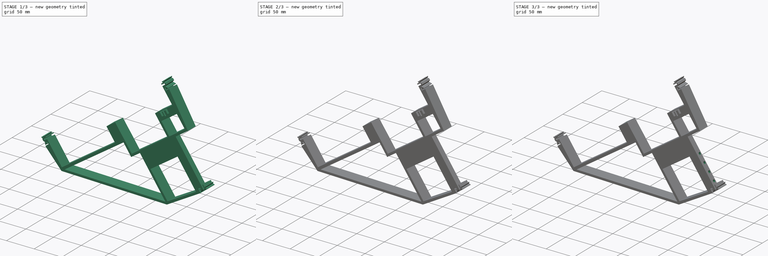
[diagram: build sequence overview — one tinted view per stage of 3, left to right]
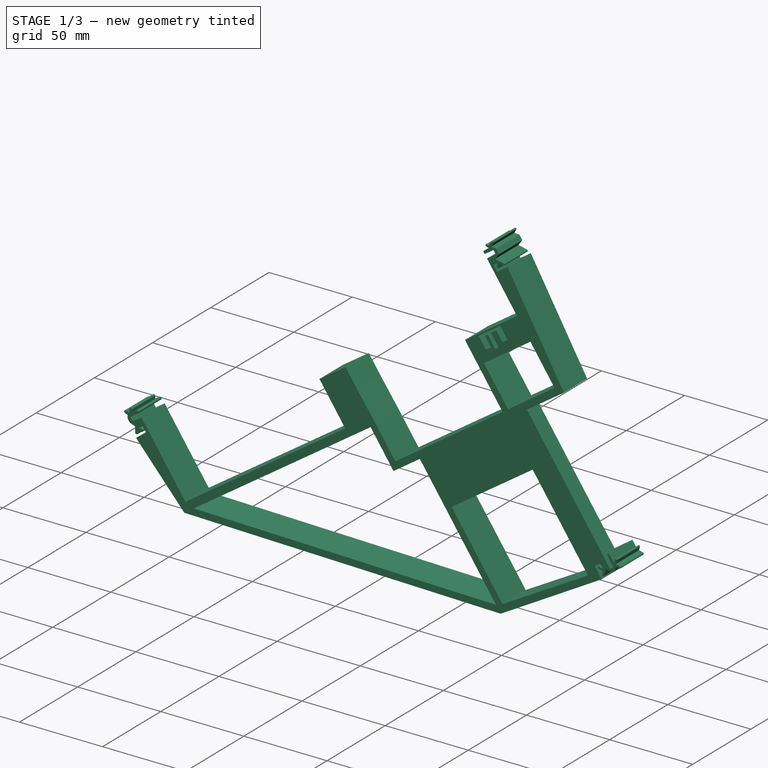
[diagram: stage 1 of 3 — iso view after this stage's code; geometry added in this stage tinted green]
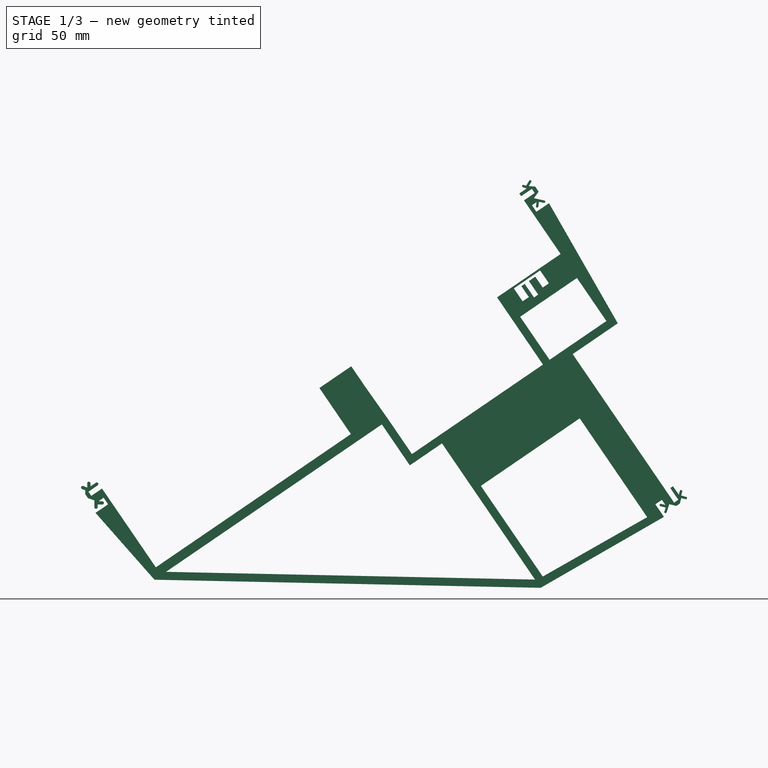
[diagram: stage 1 of 3 — front view after this stage's code; geometry added in this stage tinted green]
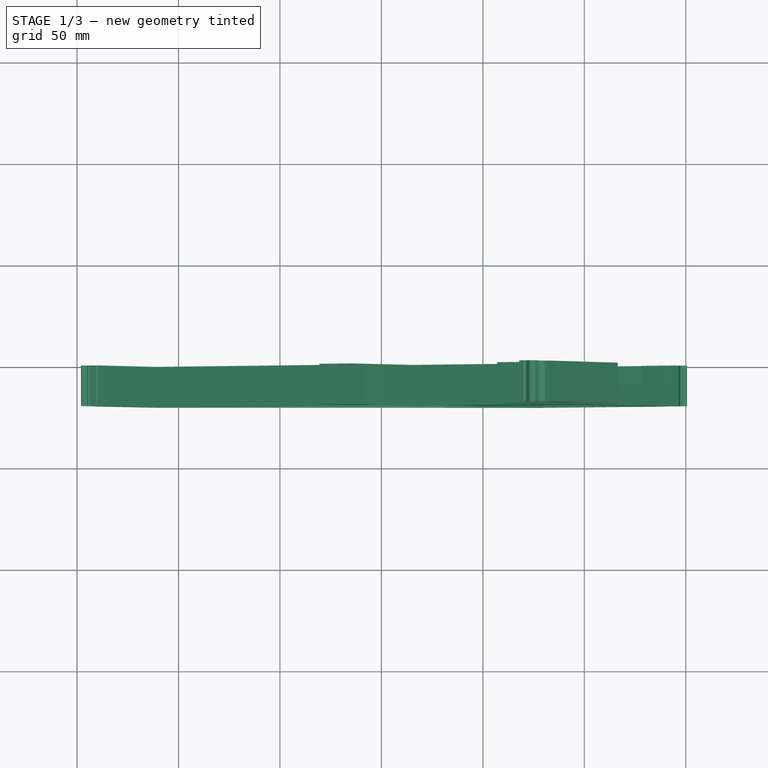
[diagram: stage 1 of 3 — top view after this stage's code; geometry added in this stage tinted green]
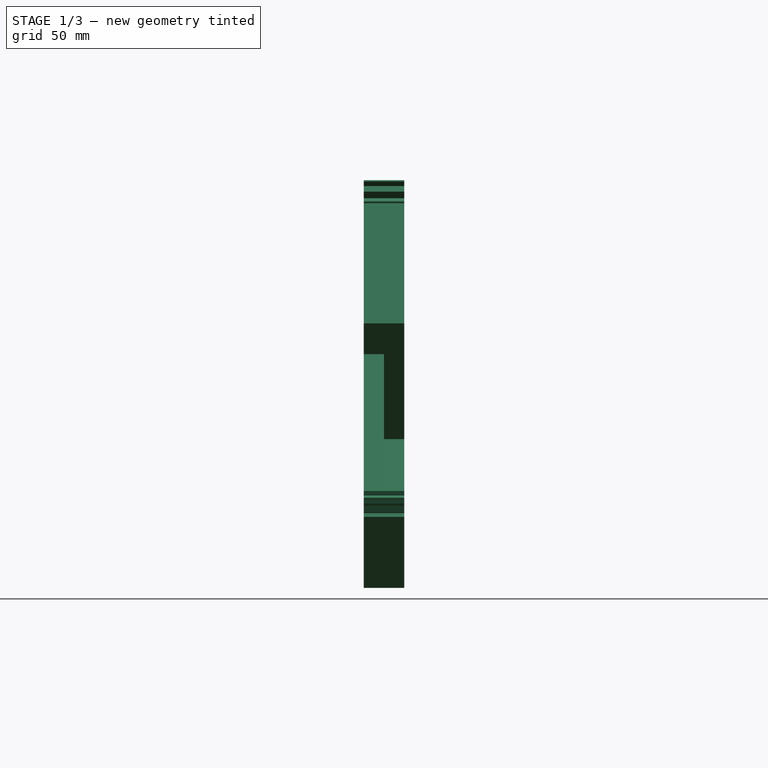
[diagram: stage 1 of 3 — right view after this stage's code; geometry added in this stage tinted green]
FCSTD DOCUMENT  (FreeCAD 0.21R33668 +7 (Git))
Label: rib-rme-middle
License: All rights reserved
LicenseURL: http://en.wikipedia.org/wiki/All_rights_reserved
objects: Sketcher::SketchObject×5, PartDesign::Pocket×4, PartDesign::Plane×3, PartDesign::Pad×1, PartDesign::Body×1
note: 19 computed .brp shape members not serialized (recipe doc carries the construction recipe); baked Part::Feature solids carry a one-line shape summary decoded from their .brp

FEATURE [Sketcher::SketchObject] Sketch
  FullyConstrained = false
  MapMode = 5
  Placement = pos=(0,0,0) rot=(1,0,0;1.5708rad)
  Support = -> [XZ_Plane]
  sketch-geometry (224):
    g0: LineSegment StartX=7.04157 StartY=40.129 StartZ=0 EndX=113.155 EndY=112.6 EndZ=0
    g1: LineSegment StartX=113.155 StartY=112.6 StartZ=0 EndX=111.745 EndY=114.665 EndZ=0
    g2: LineSegment StartX=111.745 StartY=114.665 StartZ=0 EndX=5.63162 EndY=42.1934 EndZ=0
    g3: LineSegment StartX=5.63162 StartY=42.1934 StartZ=0 EndX=7.04157 EndY=40.129 EndZ=0
    g4: LineSegment StartX=12.8221 StartY=44.0768 StartZ=0 EndX=38.7652 EndY=6.09055 EndZ=0
    g5: LineSegment StartX=38.7652 StartY=6.09055 StartZ=0 EndX=133.318 EndY=70.6662 EndZ=0
    g6: LineSegment StartX=133.318 StartY=70.6662 StartZ=0 EndX=107.375 EndY=108.653 EndZ=0
    g7: LineSegment StartX=118.021 StartY=118.951 StartZ=0 EndX=224.135 EndY=191.422 EndZ=0
    g8: LineSegment StartX=224.135 StartY=191.422 StartZ=0 EndX=225.545 EndY=189.358 EndZ=0
    g9: LineSegment StartX=225.545 StartY=189.358 StartZ=0 EndX=119.431 EndY=116.887 EndZ=0
    g10: LineSegment StartX=119.431 StartY=116.887 StartZ=0 EndX=118.021 EndY=118.951 EndZ=0
    g11: LineSegment StartX=125.212 StartY=120.834 StartZ=0 EndX=142.695 EndY=95.235 EndZ=0
    g12: LineSegment StartX=142.695 StartY=95.235 StartZ=0 EndX=237.248 EndY=159.811 EndZ=0
    g13: LineSegment StartX=237.248 StartY=159.811 StartZ=0 EndX=219.765 EndY=185.41 EndZ=0
    g14: LineSegment StartX=223.83 StartY=144.35 StartZ=0 EndX=296.302 EndY=38.236 EndZ=0
    g15: LineSegment StartX=296.302 StartY=38.236 StartZ=0 EndX=294.237 EndY=36.826 EndZ=0
    g16: LineSegment StartX=294.237 StartY=36.826 StartZ=0 EndX=221.766 EndY=142.94 EndZ=0
    g17: LineSegment StartX=221.766 StartY=142.94 StartZ=0 EndX=223.83 EndY=144.35 EndZ=0
    g18: LineSegment StartX=225.714 StartY=137.159 StartZ=0 EndX=166.257 EndY=96.5528 EndZ=0
    g19: LineSegment StartX=166.257 StartY=96.5528 StartZ=0 EndX=230.832 EndY=2 EndZ=0
    g20: LineSegment StartX=230.832 StartY=2 StartZ=0 EndX=290.289 EndY=42.6065 EndZ=0
    g21: LineSegment StartX=120.698 StartY=125.139 StartZ=0 EndX=105.008 EndY=114.423 EndZ=0
    g22: LineSegment StartX=105.008 StartY=114.423 StartZ=0 EndX=105.91 EndY=113.102 EndZ=0
    g23: LineSegment StartX=105.91 StartY=113.102 StartZ=0 EndX=113.095 EndY=118.008 EndZ=0
    g24: LineSegment StartX=113.095 StartY=118.008 StartZ=0 EndX=122.908 EndY=103.64 EndZ=0
    g25: LineSegment StartX=122.908 StartY=103.64 StartZ=0 EndX=124.229 EndY=104.542 EndZ=0
    g26: LineSegment StartX=124.229 StartY=104.542 StartZ=0 EndX=114.416 EndY=118.911 EndZ=0
    g27: LineSegment StartX=114.416 StartY=118.911 StartZ=0 EndX=121.6 EndY=123.817 EndZ=0
    g28: LineSegment StartX=121.6 StartY=123.817 StartZ=0 EndX=120.698 EndY=125.139 EndZ=0
    g29: LineSegment StartX=110.052 StartY=109.875 StartZ=0 EndX=119.865 EndY=95.5064 EndZ=0
    g30: LineSegment StartX=119.865 StartY=95.5064 StartZ=0 EndX=132.912 EndY=104.417 EndZ=0
    g31: LineSegment StartX=132.912 StartY=104.417 StartZ=0 EndX=123.099 EndY=118.786 EndZ=0
    g32: LineSegment StartX=123.099 StartY=118.786 StartZ=0 EndX=124.42 EndY=119.688 EndZ=0
    g33: LineSegment StartX=124.42 StartY=119.688 StartZ=0 EndX=135.136 EndY=103.998 EndZ=0
    g34: LineSegment StartX=135.136 StartY=103.998 StartZ=0 EndX=119.446 EndY=93.2828 EndZ=0
    g35: LineSegment StartX=119.446 StartY=93.2828 StartZ=0 EndX=108.73 EndY=108.973 EndZ=0
    g36: LineSegment StartX=108.73 StartY=108.973 StartZ=0 EndX=110.052 EndY=109.875 EndZ=0
    g37: LineSegment StartX=1.66772 StartY=44.4512 StartZ=0 EndX=9.16865 EndY=33.4682 EndZ=0
    g38: LineSegment StartX=9.16865 StartY=33.4682 StartZ=0 EndX=13.5453 EndY=36.4573 EndZ=0
    g39: LineSegment StartX=13.5453 StartY=36.4573 StartZ=0 EndX=12.1354 EndY=38.5218 EndZ=0
    g40: LineSegment StartX=12.1354 StartY=38.5218 StartZ=0 EndX=13.1263 EndY=39.1986 EndZ=0
    g41: LineSegment StartX=13.1263 StartY=39.1986 StartZ=0 EndX=15.2131 EndY=36.1431 EndZ=0
    g42: LineSegment StartX=15.2131 StartY=36.1431 StartZ=0 EndX=8.85448 EndY=31.8005 EndZ=0
    g43: LineSegment StartX=8.85448 StartY=31.8005 StartZ=0 EndX=0 EndY=44.7654 EndZ=0
    g44: LineSegment StartX=0 StartY=44.7654 StartZ=0 EndX=6.35857 EndY=49.108 EndZ=0
    g45: LineSegment StartX=6.35857 StartY=49.108 StartZ=0 EndX=8.4453 EndY=46.0526 EndZ=0
    g46: LineSegment StartX=8.4453 StartY=46.0526 StartZ=0 EndX=7.45435 EndY=45.3758 EndZ=0
    g47: LineSegment StartX=7.45435 StartY=45.3758 StartZ=0 EndX=6.0444 EndY=47.4403 EndZ=0
    g48: LineSegment StartX=6.0444 StartY=47.4403 StartZ=0 EndX=1.66772 EndY=44.4512 EndZ=0
    g49: LineSegment StartX=217.43 StartY=193.261 StartZ=0 EndX=223.789 EndY=197.604 EndZ=0
    g50: LineSegment StartX=223.789 StartY=197.604 StartZ=0 EndX=232.643 EndY=184.639 EndZ=0
    g51: LineSegment StartX=232.643 StartY=184.639 StartZ=0 EndX=226.285 EndY=180.296 EndZ=0
    g52: LineSegment StartX=226.285 StartY=180.296 StartZ=0 EndX=224.198 EndY=183.352 EndZ=0
    g53: LineSegment StartX=224.198 StartY=183.352 StartZ=0 EndX=225.189 EndY=184.029 EndZ=0
    g54: LineSegment StartX=225.189 StartY=184.029 StartZ=0 EndX=226.599 EndY=181.964 EndZ=0
    g55: LineSegment StartX=226.599 StartY=181.964 StartZ=0 EndX=230.975 EndY=184.953 EndZ=0
    g56: LineSegment StartX=230.975 StartY=184.953 StartZ=0 EndX=223.475 EndY=195.936 EndZ=0
    g57: LineSegment StartX=223.475 StartY=195.936 StartZ=0 EndX=219.098 EndY=192.947 EndZ=0
    g58: LineSegment StartX=219.098 StartY=192.947 StartZ=0 EndX=220.508 EndY=190.883 EndZ=0
    g59: LineSegment StartX=220.508 StartY=190.883 StartZ=0 EndX=219.517 EndY=190.206 EndZ=0
    g60: LineSegment StartX=219.517 StartY=190.206 StartZ=0 EndX=217.43 EndY=193.261 EndZ=0
    g61: LineSegment StartX=215.254 StartY=142.368 StartZ=0 EndX=228.219 EndY=151.222 EndZ=0
    g62: LineSegment StartX=228.219 StartY=151.222 StartZ=0 EndX=232.561 EndY=144.864 EndZ=0
    g63: LineSegment StartX=232.561 StartY=144.864 StartZ=0 EndX=229.506 EndY=142.777 EndZ=0
    g64: LineSegment StartX=229.506 StartY=142.777 StartZ=0 EndX=228.829 EndY=143.768 EndZ=0
    g65: LineSegment StartX=228.829 StartY=143.768 StartZ=0 EndX=230.894 EndY=145.178 EndZ=0
    g66: LineSegment StartX=230.894 StartY=145.178 StartZ=0 EndX=227.905 EndY=149.554 EndZ=0
    g67: LineSegment StartX=227.905 StartY=149.554 StartZ=0 EndX=216.922 EndY=142.054 EndZ=0
    g68: LineSegment StartX=216.922 StartY=142.054 StartZ=0 EndX=219.911 EndY=137.677 EndZ=0
    g69: LineSegment StartX=219.911 StartY=137.677 StartZ=0 EndX=221.975 EndY=139.087 EndZ=0
    g70: LineSegment StartX=221.975 StartY=139.087 StartZ=0 EndX=222.652 EndY=138.096 EndZ=0
    g71: LineSegment StartX=222.652 StartY=138.096 StartZ=0 EndX=219.597 EndY=136.009 EndZ=0
    g72: LineSegment StartX=219.597 StartY=136.009 StartZ=0 EndX=215.254 EndY=142.368 EndZ=0
    g73: LineSegment StartX=288.231 StartY=38.1734 StartZ=0 EndX=285.175 EndY=36.0866 EndZ=0
    g74: LineSegment StartX=285.175 StartY=36.0866 StartZ=0 EndX=289.518 EndY=29.7281 EndZ=0
    g75: LineSegment StartX=289.518 StartY=29.7281 StartZ=0 EndX=302.483 EndY=38.5825 EndZ=0
    g76: LineSegment StartX=302.483 StartY=38.5825 StartZ=0 EndX=298.14 EndY=44.9411 EndZ=0
    g77: LineSegment StartX=298.14 StartY=44.9411 StartZ=0 EndX=295.085 EndY=42.8544 EndZ=0
    g78: LineSegment StartX=295.085 StartY=42.8544 StartZ=0 EndX=295.762 EndY=41.8634 EndZ=0
    g79: LineSegment StartX=295.762 StartY=41.8634 StartZ=0 EndX=297.826 EndY=43.2734 EndZ=0
    g80: LineSegment StartX=297.826 StartY=43.2734 StartZ=0 EndX=300.815 EndY=38.8967 EndZ=0
    g81: LineSegment StartX=300.815 StartY=38.8967 StartZ=0 EndX=289.832 EndY=31.3958 EndZ=0
    g82: LineSegment StartX=289.832 StartY=31.3958 StartZ=0 EndX=286.843 EndY=35.7725 EndZ=0
    g83: LineSegment StartX=286.843 StartY=35.7725 StartZ=0 EndX=288.908 EndY=37.1824 EndZ=0
    g84: LineSegment StartX=288.908 StartY=37.1824 StartZ=0 EndX=288.231 EndY=38.1734 EndZ=0
    g85: LineSegment StartX=4.03162 StartY=42.9107 StartZ=0 EndX=2.49558 EndY=43.4939 EndZ=0
    g86: ArcOfCircle CenterX=2.77954 CenterY=44.2418 CenterZ=0 NormalX=0 NormalY=0 NormalZ=1 AngleXU=0 Radius=0.8 StartAngle=1.20795 EndAngle=4.34954
    g87: LineSegment StartX=3.06349 StartY=44.9897 StartZ=0 EndX=5.03495 EndY=44.2412 EndZ=0
    g88: LineSegment StartX=5.03495 StartY=44.2412 StartZ=0 EndX=5.03495 EndY=46.3285 EndZ=0
    g89: LineSegment StartX=4.03162 StartY=40.99 StartZ=0 EndX=5.38999 EndY=39.001 EndZ=0
    g90: LineSegment StartX=5.38999 StartY=39.001 StartZ=0 EndX=8.5781 EndY=37.9158 EndZ=0
    g91: LineSegment StartX=8.5781 StartY=37.9158 StartZ=0 EndX=8.5781 EndY=34.58 EndZ=0
    g92: LineSegment StartX=10.1781 StartY=34.58 StartZ=0 EndX=10.1781 EndY=35.8668 EndZ=0
    g93: LineSegment StartX=10.1781 StartY=35.8668 StartZ=0 EndX=12.4335 EndY=35.8668 EndZ=0
    g94: ArcOfCircle CenterX=5.83495 CenterY=46.3285 CenterZ=0 NormalX=0 NormalY=0 NormalZ=1 AngleXU=0 Radius=0.8 StartAngle=1.9e-15 EndAngle=3.14159
    g95: ArcOfCircle CenterX=9.3781 CenterY=34.58 CenterZ=0 NormalX=0 NormalY=0 NormalZ=1 AngleXU=0 Radius=0.8 StartAngle=3.14159 EndAngle=6.28319
    g96: ArcOfCircle CenterX=12.4335 CenterY=36.6668 CenterZ=0 NormalX=0 NormalY=0 NormalZ=1 AngleXU=0 Radius=0.8 StartAngle=4.71239 EndAngle=7.85398
    g97: LineSegment StartX=12.4335 StartY=37.4668 StartZ=0 EndX=10.5906 EndY=37.4668 EndZ=0
    g98: LineSegment StartX=6.63495 StartY=46.3285 StartZ=0 EndX=6.63495 EndY=44.8162 EndZ=0
    g99: LineSegment StartX=6.63495 StartY=44.8162 StartZ=0 EndX=8.4453 EndY=46.0526 EndZ=0
    g100: LineSegment StartX=7.59619 StartY=43.5352 StartZ=0 EndX=5.63162 EndY=42.1934 EndZ=0
    g101: LineSegment StartX=5.63162 StartY=42.1934 StartZ=0 EndX=7.04157 EndY=40.129 EndZ=0
    g102: LineSegment StartX=7.04157 StartY=40.129 StartZ=0 EndX=12.3266 EndY=43.7384 EndZ=0
    g103: LineSegment StartX=4.03162 StartY=40.99 StartZ=0 EndX=4.03162 EndY=42.9107 EndZ=0
    g104: LineSegment StartX=8.4453 StartY=46.0526 StartZ=0 EndX=9.33776 EndY=46.6177 EndZ=0
    g105: LineSegment StartX=10.1928 StartY=45.3231 StartZ=0 EndX=7.59619 EndY=43.5352 EndZ=0
    g106: LineSegment StartX=10.5906 StartY=37.4668 StartZ=0 EndX=13.1263 EndY=39.1986 EndZ=0
    g107: LineSegment StartX=12.3266 StartY=43.7384 StartZ=0 EndX=38.8337 EndY=4.92637 EndZ=0
    g108: LineSegment StartX=142.695 StartY=95.235 StartZ=0 EndX=165.818 EndY=61.3777 EndZ=0
    g109: LineSegment StartX=165.818 StartY=61.3777 StartZ=0 EndX=260.371 EndY=125.953 EndZ=0
    g110: LineSegment StartX=260.371 StartY=125.953 StartZ=0 EndX=237.248 EndY=159.811 EndZ=0
    g111: LineSegment StartX=218.85 StartY=187.813 StartZ=0 EndX=217.948 EndY=189.134 EndZ=0
    g112: LineSegment StartX=217.948 StartY=189.134 StartZ=0 EndX=221.596 EndY=191.626 EndZ=0
    g113: LineSegment StartX=221.596 StartY=191.626 StartZ=0 EndX=219.749 EndY=192.219 EndZ=0
    g114: LineSegment StartX=220.115 StartY=193.361 StartZ=0 EndX=221.343 EndY=192.967 EndZ=0
    g115: LineSegment StartX=221.343 StartY=192.967 StartZ=0 EndX=222.802 EndY=195.41 EndZ=0
    g116: LineSegment StartX=223.833 StartY=194.795 StartZ=0 EndX=222.636 EndY=192.792 EndZ=0
    g117: LineSegment StartX=222.636 StartY=192.792 StartZ=0 EndX=225.787 EndY=192.55 EndZ=0
    g118: LineSegment StartX=225.787 StartY=192.55 StartZ=0 EndX=227.492 EndY=190.053 EndZ=0
    g119: LineSegment StartX=227.492 StartY=190.053 StartZ=0 EndX=225.154 EndY=186.822 EndZ=0
    g120: LineSegment StartX=225.154 StartY=186.822 StartZ=0 EndX=230.271 EndY=185.696 EndZ=0
    g121: LineSegment StartX=230.013 StartY=184.524 StartZ=0 EndX=227.63 EndY=185.049 EndZ=0
    g122: LineSegment StartX=227.63 StartY=185.049 StartZ=0 EndX=227.352 EndY=182.727 EndZ=0
    g123: LineSegment StartX=226.167 StartY=182.682 StartZ=0 EndX=226.43 EndY=184.876 EndZ=0
    g124: LineSegment StartX=226.43 StartY=184.876 StartZ=0 EndX=224.198 EndY=183.352 EndZ=0
    g125: LineSegment StartX=218.85 StartY=187.813 StartZ=0 EndX=224.135 EndY=191.422 EndZ=0
    g126: LineSegment StartX=224.135 StartY=191.422 StartZ=0 EndX=225.545 EndY=189.358 EndZ=0
    g127: LineSegment StartX=225.545 StartY=189.358 StartZ=0 EndX=220.26 EndY=185.749 EndZ=0
    g128: LineSegment StartX=220.26 StartY=185.749 StartZ=0 EndX=238.308 EndY=159.323 EndZ=0
    g129: ArcOfCircle CenterX=219.932 CenterY=192.79 CenterZ=0 NormalX=0 NormalY=0 NormalZ=1 AngleXU=0 Radius=0.6 StartAngle=1.26048 EndAngle=4.40208
    g130: ArcOfCircle CenterX=223.317 CenterY=195.102 CenterZ=0 NormalX=0 NormalY=0 NormalZ=1 AngleXU=0 Radius=0.6 StartAngle=5.74473 EndAngle=8.88632
    g131: ArcOfCircle CenterX=230.142 CenterY=185.11 CenterZ=0 NormalX=0 NormalY=0 NormalZ=1 AngleXU=0 Radius=0.6 StartAngle=4.49583 EndAngle=7.63742
    g132: ArcOfCircle CenterX=226.756 CenterY=182.798 CenterZ=0 NormalX=0 NormalY=0 NormalZ=1 AngleXU=0 Radius=0.6 StartAngle=3.33554 EndAngle=6.164
    g133: LineSegment StartX=238.308 StartY=159.323 StartZ=0 EndX=142.186 EndY=93.6761 EndZ=0
    g134: LineSegment StartX=142.186 StartY=93.6761 StartZ=0 EndX=135.136 EndY=103.998 EndZ=0
    g135: LineSegment StartX=135.136 StartY=103.998 StartZ=0 EndX=119.446 EndY=93.2828 EndZ=0
    g136: LineSegment StartX=119.446 StartY=93.2828 StartZ=0 EndX=134.955 EndY=70.5736 EndZ=0
    g137: LineSegment StartX=134.955 StartY=70.5736 StartZ=0 EndX=38.8337 EndY=4.92637 EndZ=0
    g138: LineSegment StartX=214.167 StartY=135.571 StartZ=0 EndX=216.592 EndY=132.02 EndZ=0
    g139: LineSegment StartX=216.592 StartY=132.02 StartZ=0 EndX=225.206 EndY=137.903 EndZ=0
    g140: LineSegment StartX=225.206 StartY=137.903 StartZ=0 EndX=220.638 EndY=144.591 EndZ=0
    g141: LineSegment StartX=220.638 StartY=144.591 StartZ=0 EndX=218.986 EndY=143.463 EndZ=0
    g142: LineSegment StartX=218.986 StartY=143.463 StartZ=0 EndX=222.652 EndY=138.096 EndZ=0
    g143: LineSegment StartX=222.652 StartY=138.096 StartZ=0 EndX=219.597 EndY=136.009 EndZ=0
    g144: LineSegment StartX=219.597 StartY=136.009 StartZ=0 EndX=215.254 EndY=142.368 EndZ=0
    g145: LineSegment StartX=215.254 StartY=142.368 StartZ=0 EndX=228.219 EndY=151.222 EndZ=0
    g146: LineSegment StartX=228.219 StartY=151.222 StartZ=0 EndX=232.561 EndY=144.864 EndZ=0
    g147: LineSegment StartX=232.561 StartY=144.864 StartZ=0 EndX=229.506 EndY=142.777 EndZ=0
    g148: LineSegment StartX=229.506 StartY=142.777 StartZ=0 EndX=225.84 EndY=148.145 EndZ=0
    g149: LineSegment StartX=225.84 StartY=148.145 StartZ=0 EndX=222.702 EndY=146.001 EndZ=0
    g150: LineSegment StartX=222.702 StartY=146.001 StartZ=0 EndX=227.27 EndY=139.312 EndZ=0
    g151: LineSegment StartX=227.27 StartY=139.312 StartZ=0 EndX=245.686 EndY=151.889 EndZ=0
    g152: LineSegment StartX=292.377 StartY=43.9829 StartZ=0 EndX=293.698 EndY=44.8852 EndZ=0
    g153: LineSegment StartX=293.698 StartY=44.8852 StartZ=0 EndX=296.565 EndY=40.6866 EndZ=0
    g154: LineSegment StartX=296.565 StartY=40.6866 StartZ=0 EndX=297.091 EndY=42.5984 EndZ=0
    g155: LineSegment StartX=298.248 StartY=42.2806 StartZ=0 EndX=297.708 EndY=40.3139 EndZ=0
    g156: LineSegment StartX=297.708 StartY=40.3139 StartZ=0 EndX=300.143 EndY=39.6316 EndZ=0
    g157: LineSegment StartX=299.82 StartY=38.476 StartZ=0 EndX=297.773 EndY=39.0492 EndZ=0
    g158: LineSegment StartX=297.773 StartY=39.0492 StartZ=0 EndX=297.037 EndY=36.3162 EndZ=0
    g159: LineSegment StartX=297.037 StartY=36.3162 StartZ=0 EndX=295.365 EndY=35.1744 EndZ=0
    g160: LineSegment StartX=295.365 StartY=35.1744 StartZ=0 EndX=291.85 EndY=36.03 EndZ=0
    g161: LineSegment StartX=291.85 StartY=36.03 StartZ=0 EndX=290.56 EndY=32.0448 EndZ=0
    g162: LineSegment StartX=289.393 StartY=32.1622 StartZ=0 EndX=290.108 EndY=34.3711 EndZ=0
    g163: LineSegment StartX=290.108 StartY=34.3711 StartZ=0 EndX=287.528 EndY=35.0343 EndZ=0
    g164: LineSegment StartX=287.826 StartY=36.1965 StartZ=0 EndX=289.954 EndY=35.6496 EndZ=0
    g165: LineSegment StartX=289.954 StartY=35.6496 StartZ=0 EndX=288.231 EndY=38.1734 EndZ=0
    g166: LineSegment StartX=292.377 StartY=43.9829 StartZ=0 EndX=296.302 EndY=38.236 EndZ=0
    g167: LineSegment StartX=296.302 StartY=38.236 StartZ=0 EndX=294.237 EndY=36.826 EndZ=0
    g168: LineSegment StartX=294.237 StartY=36.826 StartZ=0 EndX=290.628 EndY=42.1111 EndZ=0
    g169: LineSegment StartX=290.628 StartY=42.1111 StartZ=0 EndX=229.519 EndY=0.376567 EndZ=0
    g170: ArcOfCircle CenterX=297.669 CenterY=42.4395 CenterZ=0 NormalX=0 NormalY=0 NormalZ=1 AngleXU=0 Radius=0.6 StartAngle=6.01516 EndAngle=9.15676
    g171: ArcOfCircle CenterX=299.981 CenterY=39.0538 CenterZ=0 NormalX=0 NormalY=0 NormalZ=1 AngleXU=0 Radius=0.6 StartAngle=4.43925 EndAngle=7.58084
    g172: ArcOfCircle CenterX=289.989 CenterY=32.2296 CenterZ=0 NormalX=0 NormalY=0 NormalZ=1 AngleXU=0 Radius=0.6 StartAngle=3.25426 EndAngle=5.97008
    g173: ArcOfCircle CenterX=287.677 CenterY=35.6154 CenterZ=0 NormalX=0 NormalY=0 NormalZ=1 AngleXU=0 Radius=0.6 StartAngle=1.31926 EndAngle=4.46085
    g174: LineSegment StartX=161.672 StartY=99.7189 StartZ=0 EndX=229.519 EndY=0.376567 EndZ=0
    g175: LineSegment StartX=214.167 StartY=135.571 StartZ=0 EndX=161.672 EndY=99.7189 EndZ=0
    g176: ArcOfCircle CenterX=9.75282 CenterY=45.9621 CenterZ=0 NormalX=0 NormalY=0 NormalZ=1 AngleXU=0 Radius=0.775885 StartAngle=5.31539 EndAngle=8.41842
    g177: LineSegment StartX=288.231 StartY=38.1734 StartZ=0 EndX=285.01 EndY=35.9738 EndZ=0
    g178: LineSegment StartX=285.01 StartY=35.9738 StartZ=0 EndX=289.24 EndY=29.7804 EndZ=0
    g179: LineSegment StartX=289.24 StartY=29.7804 StartZ=0 EndX=228.472 EndY=-5.18251 EndZ=0
    g180: LineSegment StartX=224.198 StartY=183.352 StartZ=0 EndX=226.397 EndY=180.131 EndZ=0
    g181: LineSegment StartX=226.397 StartY=180.131 StartZ=0 EndX=245.686 EndY=151.889 EndZ=0
    g182: LineSegment StartX=226.397 StartY=180.131 StartZ=0 EndX=232.591 EndY=184.361 EndZ=0
    g183: LineSegment StartX=13.1263 StartY=39.1986 StartZ=0 EndX=15.3259 EndY=35.978 EndZ=0
    g184: LineSegment StartX=15.3259 StartY=35.978 StartZ=0 EndX=39.8973 EndY=0 EndZ=0
    g185: LineSegment StartX=15.3259 StartY=35.978 StartZ=0 EndX=9.13244 EndY=31.7481 EndZ=0
    g186: LineSegment StartX=9.13244 StartY=31.7481 StartZ=0 EndX=38.1632 EndY=-1.18436 EndZ=0
    g187: LineSegment StartX=38.1632 StartY=-1.18436 StartZ=0 EndX=39.8973 EndY=0 EndZ=0
    g188: LineSegment StartX=232.591 StartY=184.361 StartZ=0 EndX=247.42 EndY=153.074 EndZ=0
    g189: LineSegment StartX=247.42 StartY=153.074 StartZ=0 EndX=245.686 EndY=151.889 EndZ=0
    g190: LineSegment StartX=153.526 StartY=77.6036 StartZ=0 EndX=165.049 EndY=60.7311 EndZ=0
    g191: LineSegment StartX=260.923 StartY=126.209 StartZ=0 EndX=238.308 EndY=159.323 EndZ=0
    g192: LineSegment StartX=150.223 StartY=75.3477 StartZ=0 EndX=164.002 EndY=55.1721 EndZ=0
    g193: LineSegment StartX=266.482 StartY=125.162 StartZ=0 EndX=232.591 EndY=184.361 EndZ=0
    g194: LineSegment StartX=197.558 StartY=50.7215 StartZ=0 EndX=257.014 EndY=91.3281 EndZ=0
    g195: LineSegment StartX=244.325 StartY=109.908 StartZ=0 EndX=184.868 EndY=69.3018 EndZ=0
    g196: LineSegment StartX=210.77 StartY=59.7452 StartZ=0 EndX=198.081 EndY=78.3254 EndZ=0
    g197: LineSegment StartX=290.628 StartY=42.1111 StartZ=0 EndX=244.268 EndY=109.991 EndZ=0
    g198: LineSegment StartX=164.002 StartY=55.1721 StartZ=0 EndX=179.857 EndY=66.0005 EndZ=0
    g199: LineSegment StartX=166.078 StartY=86.1761 StartZ=0 EndX=179.857 EndY=66.0005 EndZ=0
    g200: LineSegment StartX=179.857 StartY=66.0005 StartZ=0 EndX=244.268 EndY=109.991 EndZ=0
    g201: LineSegment StartX=244.268 StartY=109.991 StartZ=0 EndX=266.482 EndY=125.162 EndZ=0
    g202: LineSegment StartX=153.526 StartY=77.6036 StartZ=0 EndX=166.078 EndY=86.1761 EndZ=0
    g203: LineSegment StartX=150.223 StartY=75.3477 StartZ=0 EndX=153.526 EndY=77.6036 EndZ=0
    g204: LineSegment StartX=142.186 StartY=93.6761 StartZ=0 EndX=153.526 EndY=77.6036 EndZ=0
    g205: LineSegment StartX=38.1632 StartY=-1.18436 StartZ=0 EndX=228.472 EndY=-5.18251 EndZ=0
    g206: LineSegment StartX=43.8465 StartY=2.69713 StartZ=0 EndX=225.7 EndY=-1.12338 EndZ=0
    g207: LineSegment StartX=179.857 StartY=66.0005 StartZ=0 EndX=225.7 EndY=-1.12338 EndZ=0
    g208: LineSegment StartX=225.7 StartY=-1.12338 StartZ=0 EndX=228.472 EndY=-5.18251 EndZ=0
    g209: LineSegment StartX=39.8973 StartY=0 StartZ=0 EndX=43.8465 EndY=2.69713 EndZ=0
    g210: LineSegment StartX=43.8465 StartY=2.69713 StartZ=0 EndX=150.223 EndY=75.3477 EndZ=0
    g211: LineSegment StartX=247.729 StartY=78.3265 StartZ=0 EndX=199.008 EndY=45.0517 EndZ=0
    g212: LineSegment StartX=229.519 StartY=0.376567 StartZ=0 EndX=280.979 EndY=29.6421 EndZ=0
    g213: LineSegment StartX=280.979 StartY=29.6421 StartZ=0 EndX=247.729 EndY=78.3265 EndZ=0
    g214: LineSegment StartX=199.008 StartY=45.0517 StartZ=0 EndX=229.519 EndY=0.376567 EndZ=0
    g215: LineSegment StartX=238.308 StartY=159.323 StartZ=0 EndX=207.01 EndY=137.948 EndZ=0
    g216: LineSegment StartX=207.01 StartY=137.948 StartZ=0 EndX=229.626 EndY=104.834 EndZ=0
    g217: LineSegment StartX=165.049 StartY=60.7311 StartZ=0 EndX=229.626 EndY=104.834 EndZ=0
    g218: LineSegment StartX=229.626 StartY=104.834 StartZ=0 EndX=260.923 EndY=126.209 EndZ=0
    g219: LineSegment StartX=225.206 StartY=137.903 StartZ=0 EndX=227.27 EndY=139.312 EndZ=0
    g220: LineSegment StartX=218.378 StartY=128.396 StartZ=0 EndX=232.872 EndY=107.173 EndZ=0
    g221: LineSegment StartX=232.872 StartY=107.173 StartZ=0 EndX=260.867 EndY=126.292 EndZ=0
    g222: LineSegment StartX=260.867 StartY=126.292 StartZ=0 EndX=246.372 EndY=147.515 EndZ=0
    g223: LineSegment StartX=246.372 StartY=147.515 StartZ=0 EndX=218.378 EndY=128.396 EndZ=0
  constraints (611):
    c: Coincident(g0,g1)
    c: Coincident(g1,g2)
    c: Coincident(g2,g3)
    c: Coincident(g3,g0)
    c: Parallel(g0,g2)
    c: Parallel(g3,g1)
    c: Perpendicular(g1,g0)
    c: Distance(g1) = 2.5
    c: Distance(g0) = 128.5
    c: PointOnObject(g4,g0)
    c: Coincident(g4,g5)
    c: Coincident(g5,g6)
    c: PointOnObject(g6,g0)
    c: Perpendicular(g5,g4)
    c: Perpendicular(g4,g0)
    c: Perpendicular(g5,g6)
    c: Distance(g0,g4) = 7
    c: Distance(g0,g6) = 7
    c: Coincident(g7,g8)
    c: Coincident(g8,g9)
    c: Coincident(g9,g10)
    c: Coincident(g10,g7)
    c: PointOnObject(g11,g9)
    c: Coincident(g11,g12)
    c: Coincident(g12,g13)
    c: PointOnObject(g13,g9)
    c: Equal(g2,g7)
    c: Perpendicular(g8,g7)
    c: Perpendicular(g10,g9)
    c: Perpendicular(g7,g10)
    c: Equal(g10,g1)
    c: Distance(g9,g11) = 7
    c: Perpendicular(g9,g11)
    c: Perpendicular(g12,g11)
    c: Distance(g8,g13) = 7
    c: Perpendicular(g12,g13)
    c: Coincident(g14,g15)
    c: Coincident(g15,g16)
    c: Coincident(g16,g17)
    c: Coincident(g17,g14)
    c: PointOnObject(g18,g16)
    c: Coincident(g18,g19)
    c: Coincident(g19,g20)
    c: PointOnObject(g20,g16)
    c: Equal(g7,g14)
    c: Perpendicular(g14,g17)
    c: Perpendicular(g16,g17)
    c: Perpendicular(g16,g18)
    c: Perpendicular(g18,g19)
    c: Perpendicular(g19,g20)
    c: Perpendicular(g16,g15)
    c: Distance(g15,g20) = 7
    c: Distance(g16,g18) = 7
    c: Equal(g17,g8)
    c: Coincident(g21,g22)
    c: Coincident(g22,g23)
    c: Coincident(g23,g24)
    c: Coincident(g24,g25)
    c: Coincident(g25,g26)
    c: Coincident(g26,g27)
    c: Coincident(g27,g28)
    c: Coincident(g28,g21)
    c: Coincident(g29,g30)
    c: Coincident(g30,g31)
    c: Coincident(g31,g32)
    c: Coincident(g32,g33)
    c: Coincident(g33,g34)
    c: Coincident(g34,g35)
    c: Coincident(g35,g36)
    c: Coincident(g36,g29)
    c: Coincident(g37,g38)
    c: Coincident(g38,g39)
    c: Coincident(g39,g40)
    c: Coincident(g40,g41)
    c: Coincident(g41,g42)
    c: Coincident(g42,g43)
    c: Coincident(g43,g44)
    c: Coincident(g44,g45)
    c: Coincident(g45,g46)
    c: Coincident(g46,g47)
    c: Coincident(g47,g48)
    c: Coincident(g48,g37)
    c: Coincident(g49,g50)
    c: Coincident(g50,g51)
    c: Coincident(g51,g52)
    c: Coincident(g52,g53)
    c: Coincident(g53,g54)
    c: Coincident(g54,g55)
    c: Coincident(g55,g56)
    c: Coincident(g56,g57)
    c: Coincident(g57,g58)
    c: Coincident(g58,g59)
    c: Coincident(g59,g60)
    c: Coincident(g60,g49)
    c: Coincident(g61,g62)
    c: Coincident(g62,g63)
    c: Coincident(g63,g64)
    c: Coincident(g64,g65)
    c: Coincident(g65,g66)
    c: Coincident(g66,g67)
    c: Coincident(g67,g68)
    c: Coincident(g68,g69)
    c: Coincident(g69,g70)
    c: Coincident(g70,g71)
    c: Coincident(g71,g72)
    c: Coincident(g72,g61)
    c: Coincident(g73,g74)
    c: Coincident(g74,g75)
    c: Coincident(g75,g76)
    c: Coincident(g76,g77)
    c: Coincident(g77,g78)
    c: Coincident(g78,g79)
    c: Coincident(g79,g80)
    c: Coincident(g80,g81)
    c: Coincident(g81,g82)
    c: Coincident(g82,g83)
    c: Coincident(g83,g84)
    c: Coincident(g84,g73)
    c: Perpendicular(g37,g48)
    c: Parallel(g37,g43)
    c: Parallel(g40,g46)
    c: Parallel(g46,g44)
    c: Parallel(g44,g48)
    c: Parallel(g48,g38)
    c: Parallel(g38,g42)
    c: Parallel(g41,g39)
    c: Parallel(g39,g37)
    c: Parallel(g37,g47)
    c: Parallel(g47,g45)
    c: Equal(g48,g38)
    c: Equal(g40,g46)
    c: Equal(g45,g41)
    c: Equal(g47,g39)
    c: Perpendicular(g30,g29)
    c: Parallel(g33,g31)
    c: Parallel(g31,g29)
    c: Parallel(g29,g35)
    c: Parallel(g35,g22)
    c: Parallel(g22,g24)
    c: Parallel(g24,g26)
    c: Parallel(g26,g28)
    c: Parallel(g21,g23)
    c: Parallel(g23,g27)
    c: Parallel(g27,g25)
    c: Parallel(g25,g30)
    c: Parallel(g30,g34)
    c: Parallel(g34,g32)
    c: Parallel(g32,g36)
    c: Equal(g25,g22)
    c: Equal(g22,g28)
    c: Equal(g32,g36)
    c: Perpendicular(g57,g56)
    c: Parallel(g56,g50)
    c: Parallel(g50,g58)
    c: Parallel(g58,g60)
    c: Parallel(g60,g54)
    c: Parallel(g54,g52)
    c: Parallel(g55,g53)
    c: Parallel(g53,g59)
    c: Parallel(g59,g57)
    c: Parallel(g57,g49)
    c: Parallel(g49,g51)
    c: Equal(g55,g57)
    c: Equal(g58,g54)
    c: Equal(g53,g59)
    c: Equal(g52,g60)
    c: Parallel(g72,g68)
    c: Parallel(g68,g66)
    c: Parallel(g66,g62)
    c: Parallel(g62,g64)
    c: Parallel(g64,g70)
    c: Parallel(g69,g67)
    c: Parallel(g67,g61)
    c: Parallel(g61,g65)
    c: Parallel(g65,g63)
    c: Parallel(g63,g71)
    c: Equal(g68,g66)
    c: Perpendicular(g66,g65)
    c: Equal(g64,g70)
    c: Equal(g71,g63)
    c: Equal(g69,g65)
    c: Parallel(g81,g83)
    c: Parallel(g83,g79)
    c: Parallel(g79,g77)
    c: Parallel(g77,g73)
    c: Parallel(g73,g75)
    c: Parallel(g84,g78)
    c: Parallel(g78,g74)
    c: Parallel(g74,g82)
    c: Parallel(g82,g80)
    c: Parallel(g80,g76)
    c: Perpendicular(g80,g81)
    c: Equal(g84,g78)
    c: Equal(g79,g83)
    c: Equal(g76,g74)
    c: Equal(g77,g73)
    c: Equal(g46,g59)
    c: Equal(g78,g64)
    c: Equal(g64,g53)
    c: Distance(g40) = 1.2
    c: Distance(g37,g42) = 1.2
    c: Distance(g37,g43) = 1.2
    c: Distance(g42) = 7.7
    c: Distance(g43) = 15.7
    c: Distance(g45) = 3.7
    c: Distance(g25) = 1.6
    c: Distance(g21) = 19
    c: Equal(g23,g27)
    c: Distance(g25,g21) = 19
    c: Equal(g36,g25)
    c: Distance(g30,g34) = 1.6
    c: Equal(g33,g34)
    c: Equal(g34,g21)
    c: Equal(g35,g33)
    c: Distance(g56,g50) = 1.2
    c: Distance(g57,g49) = 1.2
    c: Distance(g50) = 15.7
    c: Distance(g67,g61) = 1.2
    c: Distance(g67,g72) = 1.2
    c: Equal(g50,g61)
    c: Distance(g80,g76) = 1.2
    c: Distance(g80,g75) = 1.2
    c: Equal(g60,g45)
    c: Equal(g71,g52)
    c: Equal(g51,g72)
    c: Equal(g51,g44)
    c: Equal(g61,g75)
    c: Equal(g73,g71)
    c: Equal(g74,g62)
    c: Distance(g4) = 46
    c: Distance(g11) = 31
    c: Distance(g18) = 72
    c: Parallel(g2,g7)
    c: PointOnObject(g1,g7)
    c: Parallel(g23,g2)
    c: Distance(g1,g24) = 3
    c: Distance(g7,g26) = 3
    c: PointOnObject(g22,g35)
    c: Distance(g22,g2) = 2
    c: Distance(g22,g36) = 5
    c: Parallel(g48,g2)
    c: Distance(g45,g2) = 1.6
    c: Distance(g0,g37) = 2
    c: Parallel(g57,g7)
    c: Distance(g7,g56) = 2
    c: PointOnObject(g44,g49)
    c: Distance(g16,g67) = 2
    c: Parallel(g66,g14)
    c: Parallel(g61,g12)
    c: Parallel(g74,g19)
    c: Distance(g14,g81) = 2
    c: PointOnObject(g43,g-2)
    c: Distance(g61,g12) = 2
    c: Distance(g50,g14) = 30
    c: Distance(g69,g16) = 2
    c: DistanceY(g-1,g19) = 2
    c: PointOnObject(g103,g37)
    c: Tangent(g86,g87) = 1.5708
    c: Coincident(g87,g88)
    c: Vertical(g88)
    c: Coincident(g103,g89)
    c: PointOnObject(g89,g37)
    c: Coincident(g89,g90)
    c: Coincident(g90,g91)
    c: Vertical(g92)
    c: Coincident(g92,g93)
    c: Equal(g86,g94)
    c: Equal(g94,g95)
    c: Equal(g95,g96)
    c: Parallel(g87,g85)
    c: Tangent(g96,g97) = -1.5708
    c: Tangent(g94,g98) = 1.5708
    c: Coincident(g98,g99)
    c: Coincident(g99,g45)
    c: PointOnObject(g100,g2)
    c: Coincident(g100,g2)
    c: Coincident(g100,g101)
    c: Coincident(g101,g0)
    c: Coincident(g101,g102)
    c: PointOnObject(g102,g0)
    c: Parallel(g98,g88)
    c: Tangent(g94,g48)
    c: Tangent(g86,g48)
    c: Tangent(g86,g85) = 1.5708
    c: Tangent(g86,g37)
    c: Tangent(g94,g47)
    c: Parallel(g99,g46)
    c: Parallel(g97,g93)
    c: Parallel(g92,g91)
    c: Tangent(g95,g92) = -1.5708
    c: Tangent(g95,g91) = -1.5708
    c: Tangent(g96,g93) = -1.5708
    c: Tangent(g96,g38)
    c: Tangent(g96,g39)
    c: Tangent(g95,g37)
    c: Tangent(g95,g38)
    c: Distance(g85,g87) = 1.6
    c: Parallel(g88,g103)
    c: Coincident(g103,g85)
    c: Distance(g100,g103) = 1.6
    c: Distance(g101,g90) = 1.6
    c: Coincident(g99,g104)
    c: Coincident(g105,g100)
    c: Coincident(g97,g106)
    c: Coincident(g106,g40)
    c: Coincident(g106,g183)
    c: PointOnObject(g184,g-1)
    c: Coincident(g102,g107)
    c: Parallel(g106,g42)
    c: PointOnObject(g89,g102)
    c: Perpendicular(g92,g93)
    c: Parallel(g4,g107)
    c: Coincident(g11,g108)
    c: Coincident(g108,g109)
    c: Coincident(g109,g110)
    c: Coincident(g110,g12)
    c: Parallel(g108,g11)
    c: Parallel(g11,g110)
    c: Parallel(g109,g12)
    c: Distance(g108) = 41
    c: PointOnObject(g111,g7)
    c: Coincident(g111,g112)
    c: Coincident(g112,g113)
    c: Coincident(g114,g115)
    c: Coincident(g116,g117)
    c: PointOnObject(g117,g56)
    c: Coincident(g117,g118)
    c: PointOnObject(g118,g56)
    c: Coincident(g118,g119)
    c: Coincident(g119,g120)
    c: Coincident(g121,g122)
    c: Coincident(g123,g124)
    c: Coincident(g124,g180)
    c: Coincident(g111,g125)
    c: Coincident(g125,g7)
    c: Coincident(g125,g126)
    c: Coincident(g126,g8)
    c: Coincident(g126,g127)
    c: PointOnObject(g127,g9)
    c: Coincident(g127,g128)
    c: Coincident(g132,g123)
    c: Equal(g129,g130)
    c: Equal(g130,g131)
    c: Equal(g131,g132)
    c: Distance(g112,g114) = 1.2
    c: Parallel(g113,g114)
    c: Tangent(g129,g57)
    c: Tangent(g130,g57)
    c: Tangent(g130,g56)
    c: Tangent(g129,g58)
    c: Parallel(g121,g120)
    c: Parallel(g122,g123)
    c: Parallel(g124,g55)
    c: Tangent(g132,g55)
    c: Tangent(g131,g55)
    c: Tangent(g131,g56)
    c: Tangent(g132,g54)
    c: PointOnObject(g53,g124)
    c: PointOnObject(g124,g52)
    c: PointOnObject(g117,g125)
    c: Tangent(g131,g120) = 1.5708
    c: Parallel(g116,g115)
    c: Distance(g181,g128) = 1.9
    c: Coincident(g128,g133)
    c: Coincident(g133,g134)
    c: Coincident(g134,g33)
    c: Coincident(g134,g135)
    c: Coincident(g135,g34)
    c: Coincident(g135,g136)
    c: Coincident(g136,g137)
    c: Coincident(g138,g139)
    c: PointOnObject(g139,g16)
    c: Coincident(g139,g140)
    c: PointOnObject(g140,g67)
    c: Coincident(g140,g141)
    c: PointOnObject(g141,g67)
    c: Coincident(g141,g142)
    c: Coincident(g142,g70)
    c: Coincident(g142,g143)
    c: Coincident(g143,g71)
    c: Coincident(g143,g144)
    c: Coincident(g144,g61)
    c: Coincident(g144,g145)
    c: Coincident(g145,g61)
    c: Coincident(g145,g146)
    c: Coincident(g146,g62)
    c: Coincident(g146,g147)
    c: Coincident(g147,g63)
    c: Coincident(g147,g148)
    c: PointOnObject(g148,g67)
    c: Coincident(g148,g149)
    c: PointOnObject(g149,g67)
    c: Coincident(g149,g150)
    c: PointOnObject(g150,g14)
    c: Coincident(g150,g151)
    c: Coincident(g151,g181)
    c: Parallel(g150,g14)
    c: Distance(g78,g14) = 1.6
    c: PointOnObject(g152,g14)
    c: Coincident(g152,g153)
    c: Coincident(g153,g154)
    c: Coincident(g155,g156)
    c: Coincident(g157,g158)
    c: PointOnObject(g158,g81)
    c: Coincident(g158,g159)
    c: PointOnObject(g159,g81)
    c: Coincident(g159,g160)
    c: Coincident(g160,g161)
    c: Coincident(g164,g165)
    c: Coincident(g165,g177)
    c: Coincident(g152,g166)
    c: Coincident(g166,g14)
    c: Coincident(g166,g167)
    c: Coincident(g167,g15)
    c: Coincident(g167,g168)
    c: PointOnObject(g168,g16)
    c: Coincident(g168,g169)
    c: Coincident(g172,g162)
    c: Tangent(g173,g163) = 1.5708
    c: Tangent(g172,g161) = 1.5708
    c: Tangent(g170,g154) = 1.5708
    c: Tangent(g170,g155) = 1.5708
    c: Tangent(g171,g156) = 1.5708
    c: Tangent(g171,g157) = 1.5708
    c: Equal(g171,g170)
    c: Equal(g170,g173)
    c: Equal(g173,g172)
    c: Parallel(g156,g157)
    c: Parallel(g155,g154)
    c: Tangent(g170,g80)
    c: Tangent(g170,g79)
    c: Parallel(g153,g166)
    c: PointOnObject(g77,g153)
    c: Parallel(g152,g77)
    c: Tangent(g80,g171)
    c: Tangent(g171,g81)
    c: Tangent(g172,g81)
    c: Tangent(g172,g82)
    c: Tangent(g173,g82)
    c: Tangent(g83,g173)
    c: PointOnObject(g83,g165)
    c: Parallel(g164,g163)
    c: Distance(g164,g163) = 1.2
    c: Parallel(g161,g162)
    c: PointOnObject(g159,g168)
    c: Distance(g165,g169) = 1.9
    c: Coincident(g174,g169)
    c: Parallel(g19,g174)
    c: Parallel(g138,g174)
    c: Coincident(g107,g137)
    c: Coincident(g184,g209)
    c: Tangent(g94,g88) = 1.5708
    c: Parallel(g134,g11)
    c: Parallel(g11,g136)
    c: Parallel(g140,g14)
    c: Parallel(g14,g148)
    c: Parallel(g148,g142)
    c: Parallel(g5,g137)
    c: PointOnObject(g59,g112)
    c: Tangent(g130,g116) = 1.5708
    c: Tangent(g130,g115) = 1.5708
    c: Tangent(g129,g114) = 1.5708
    c: Tangent(g129,g113) = 1.5708
    c: Tangent(g128,g111)
    c: Tangent(g132,g122) = 1.5708
    c: Tangent(g131,g121) = 1.5708
    c: Parallel(g133,g175)
    c: Coincident(g175,g174)
    c: Coincident(g138,g175)
    c: Distance(g138,g133) = 6
    c: Distance(g4,g137) = 1
    c: Coincident(g199,g202)
    c: Tangent(g104,g176) = 1.5708
    c: Tangent(g105,g176) = 1.5708
    c: Parallel(g112,g125)
    c: Tangent(g151,g139)
    c: Parallel(g133,g12)
    c: Distance(g12,g133) = 1
    c: PointOnObject(g73,g177)
    c: Coincident(g177,g178)
    c: Coincident(g178,g179)
    c: Coincident(g179,g208)
    c: Distance(g73,g178) = 0.2
    c: Parallel(g178,g74)
    c: Distance(g178) = 7.5
    c: Distance(g208,g169) = 4
    c: Parallel(g169,g20)
    c: Distance(g169,g19) = 2
    c: Coincident(g180,g181)
    c: Parallel(g180,g13)
    c: Parallel(g181,g13)
    c: Parallel(g128,g180)
    c: Coincident(g180,g182)
    c: Parallel(g182,g51)
    c: Distance(g180,g51) = 0.2
    c: Distance(g182) = 7.5
    c: Coincident(g183,g184)
    c: Parallel(g107,g183)
    c: Parallel(g107,g184)
    c: Distance(g107,g183) = 1.9
    c: Coincident(g183,g185)
    c: Coincident(g185,g186)
    c: Coincident(g186,g187)
    c: Coincident(g187,g209)
    c: Distance(g183,g42) = 0.2
    c: Distance(g185) = 7.5
    c: Parallel(g185,g42)
    c: Distance(g186,g107) = 4
    c: Coincident(g182,g188)
    c: Coincident(g188,g189)
    c: Coincident(g189,g151)
    c: Parallel(g189,g151)
    c: Distance(g189) = 2.1
    c: Parallel(g151,g133)
    c: Distance(g147,g151) = 1.6
    c: Coincident(g190,g217)
    c: Coincident(g218,g191)
    c: Coincident(g191,g128)
    c: Parallel(g191,g110)
    c: Parallel(g190,g108)
    c: Distance(g190,g109) = 0.1
    c: Distance(g190,g108) = 1
    c: Coincident(g192,g198)
    c: Coincident(g201,g193)
    c: Coincident(g193,g182)
    c: Parallel(g192,g190)
    c: Distance(g192,g190) = 4
    c: Distance(g201,g191) = 4
    c: PointOnObject(g194,g19)
    c: PointOnObject(g194,g16)
    c: Parallel(g194,g20)
    c: Distance(g194,g20) = 59
    c: PointOnObject(g195,g16)
    c: PointOnObject(g195,g19)
    c: Distance(g195,g194) = 22.5
    c: Parallel(g195,g194)
    c: PointOnObject(g196,g194)
    c: PointOnObject(g196,g195)
    c: Parallel(g196,g16)
    c: Distance(g196,g16) = 56
    c: Coincident(g197,g168)
    c: PointOnObject(g197,g16)
    c: Coincident(g198,g200)
    c: PointOnObject(g197,g198)
    c: Coincident(g199,g207)
    c: Parallel(g174,g199)
    c: Distance(g169,g199) = 4
    c: Coincident(g199,g198)
    c: Coincident(g200,g201)
    c: Coincident(g200,g197)
    c: Coincident(g203,g202)
    c: Parallel(g202,g137)
    c: Coincident(g203,g190)
    c: Coincident(g210,g203)
    c: Parallel(g203,g137)
    c: Coincident(g204,g134)
    c: Coincident(g204,g190)
    c: Coincident(g210,g192)
    c: Coincident(g205,g186)
    c: Distance(g206,g205) = 4
    c: Parallel(g206,g205)
    c: Coincident(g205,g179)
    c: Coincident(g207,g208)
    c: Parallel(g174,g207)
    c: Parallel(g174,g208)
    c: Coincident(g207,g206)
    c: Coincident(g209,g210)
    c: Parallel(g209,g137)
    c: Parallel(g210,g137)
    c: Parallel(g209,g187)
    c: Coincident(g206,g209)
    c: PointOnObject(g211,g174)
    c: Parallel(g211,g194)
    c: Coincident(g73,g165)
    c: Distance(g211,g197) = 15
    c: Distance(g211,g194) = 5.5
    c: Coincident(g169,g212)
    c: Coincident(g212,g213)
    c: Coincident(g213,g211)
    c: Coincident(g211,g214)
    c: Coincident(g214,g212)
    c: Distance(g212,g179) = 4
    c: Parallel(g213,g197)
    c: Coincident(g163,g162)
    c: Tangent(g173,g164) = 1.5708
    c: Coincident(g128,g215)
    c: PointOnObject(g215,g133)
    c: Coincident(g215,g216)
    c: Coincident(g217,g218)
    c: Parallel(g217,g109)
    c: Distance(g192,g217) = 4
    c: Parallel(g217,g198)
    c: Parallel(g218,g198)
    c: Parallel(g217,g201)
    c: Coincident(g217,g216)
    c: DistanceX(g193) = 266.482
    c: Tangent(g213,g216)
    c: Coincident(g219,g140)
    c: Coincident(g219,g150)
    c: PointOnObject(g220,g109)
    c: Coincident(g220,g221)
    c: PointOnObject(g221,g109)
    c: Coincident(g221,g222)
    c: Coincident(g222,g223)
    c: Coincident(g223,g220)
    c: Parallel(g223,g221)
    c: Parallel(g220,g222)
    c: Distance(g220,g219) = 4
    c: Parallel(g220,g216)
    c: Distance(g220,g216) = 4
    c: PointOnObject(g222,g191)
FEATURE [PartDesign::Pad] Pad
  Direction = (0,-1,-2e-16)
  Length = 20
  Length2 = 10
  Placement = pos=(0,0,0) rot=(1,0,0;1.5708rad)
  Profile = -> Sketch
  ReferenceAxis = -> Sketch [N_Axis]
  Type = 0
FEATURE [Sketcher::SketchObject] Sketch002
  FullyConstrained = false
  MapMode = 5
  Placement = pos=(0,0,0) rot=(1,0,0;1.5708rad)
  Support = -> [XZ_Plane]
  sketch-geometry (9):
    g0: LineSegment StartX=294.187 StartY=37.009 StartZ=0 EndX=221.409 EndY=142.913 EndZ=0
    g1: LineSegment StartX=197.858 StartY=49.0235 StartZ=0 EndX=257.68 EndY=90.1334 EndZ=0
    g2: LineSegment StartX=244.087 StartY=109.913 StartZ=0 EndX=184.472 EndY=68.9448 EndZ=0
    g3: LineSegment StartX=210.654 StartY=59.6871 StartZ=0 EndX=197.934 EndY=78.1965 EndZ=0
    g4: LineSegment StartX=179.795 StartY=65.8532 StartZ=0 EndX=244.079 EndY=110.029 EndZ=0
    g5: LineSegment StartX=240.839 StartY=107.681 StartZ=0 EndX=254.432 EndY=87.9017 EndZ=0
    g6: LineSegment StartX=254.432 StartY=87.9017 StartZ=0 EndX=208.28 EndY=56.1851 EndZ=0
    g7: LineSegment StartX=208.28 StartY=56.1851 StartZ=0 EndX=194.63 EndY=76.0477 EndZ=0
    g8: LineSegment StartX=194.63 StartY=76.0477 StartZ=0 EndX=240.839 EndY=107.681 EndZ=0
  constraints (24):
    c: PointOnObject(g1,g0)
    c: PointOnObject(g2,g0)
    c: Distance(g2,g1) = 24
    c: Parallel(g2,g1)
    c: PointOnObject(g3,g2)
    c: Parallel(g3,g0)
    c: Distance(g3,g0) = 56
    c: PointOnObject(g5,g2)
    c: PointOnObject(g5,g1)
    c: Coincident(g5,g6)
    c: PointOnObject(g6,g1)
    c: Coincident(g6,g7)
    c: PointOnObject(g7,g4)
    c: Coincident(g7,g8)
    c: Coincident(g8,g5)
    c: Parallel(g5,g7)
    c: Parallel(g7,g3)
    c: Distance(g6) = 56
    c: Distance(g4,g5) = 4
    c: DistanceX(g5) = 240.839
    c: DistanceY(g5) = 107.681
    c: DistanceX(g7) = 194.63
    c: DistanceY(g7) = 76.0477
    c: Perpendicular(g2,g7)
FEATURE [PartDesign::Plane] DatumPlane002
  AttachmentOffset = pos=(0,0,20) rot=(0,0,1;0rad)
  Length = 379.191
  MapMode = 5
  Placement = pos=(0,-20,-4.4e-15) rot=(1,0,0;1.5708rad)
  ResizeMode = 0
  Support = -> [XZ_Plane]
  Width = 274.313
FEATURE [Sketcher::SketchObject] Sketch006
  FullyConstrained = false
  MapMode = 5
  Placement = pos=(0,0,0) rot=(1,0,0;1.5708rad)
  Support = -> [XZ_Plane]
  sketch-geometry (4):
    g0: LineSegment StartX=291.815 StartY=43.5533 StartZ=0 EndX=229.68 EndY=0.32332 EndZ=0
    g1: LineSegment StartX=183.092 StartY=68.1186 StartZ=0 EndX=229.68 EndY=0.32332 EndZ=0
    g2: LineSegment StartX=291.815 StartY=43.5533 StartZ=0 EndX=245.227 EndY=111.349 EndZ=0
    g3: LineSegment StartX=183.092 StartY=68.1186 StartZ=0 EndX=245.227 EndY=111.349 EndZ=0
  constraints (4):
    c: Coincident(g3,g1)
    c: Coincident(g0,g1)
    c: Coincident(g0,g2)
    c: Coincident(g2,g3)
FEATURE [PartDesign::Pocket] Pocket004
  BaseFeature = -> Pad
  Direction = (0,1,2e-16)
  Length = 10
  Length2 = 5
  Placement = pos=(0,0,0) rot=(1,0,0;1.5708rad)
  Profile = -> Sketch006
  ReferenceAxis = -> Sketch006 [N_Axis]
  Reversed = true
  Type = 0
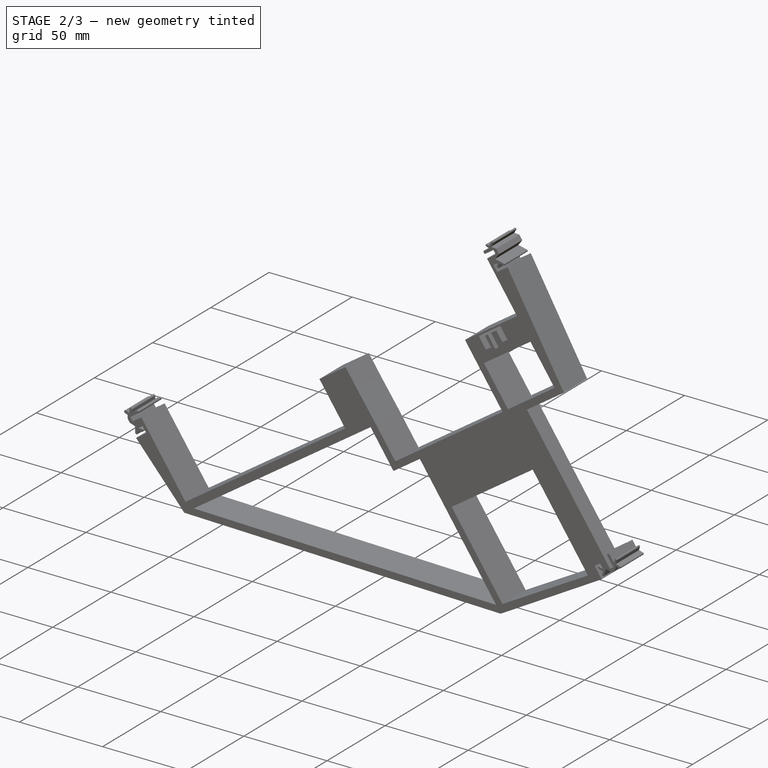
[diagram: stage 2 of 3 — iso view after this stage's code; geometry added in this stage tinted green]
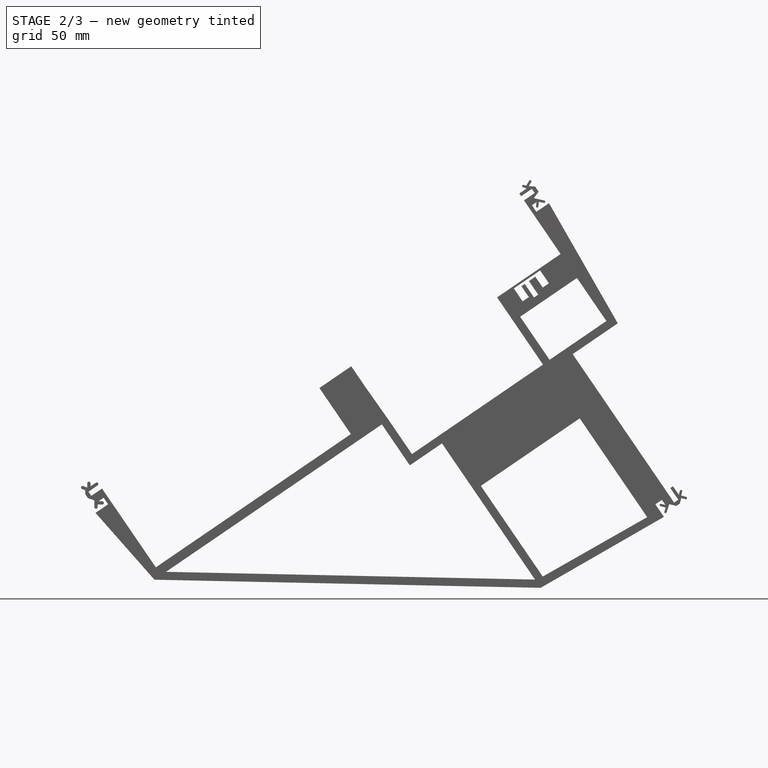
[diagram: stage 2 of 3 — front view after this stage's code; geometry added in this stage tinted green]
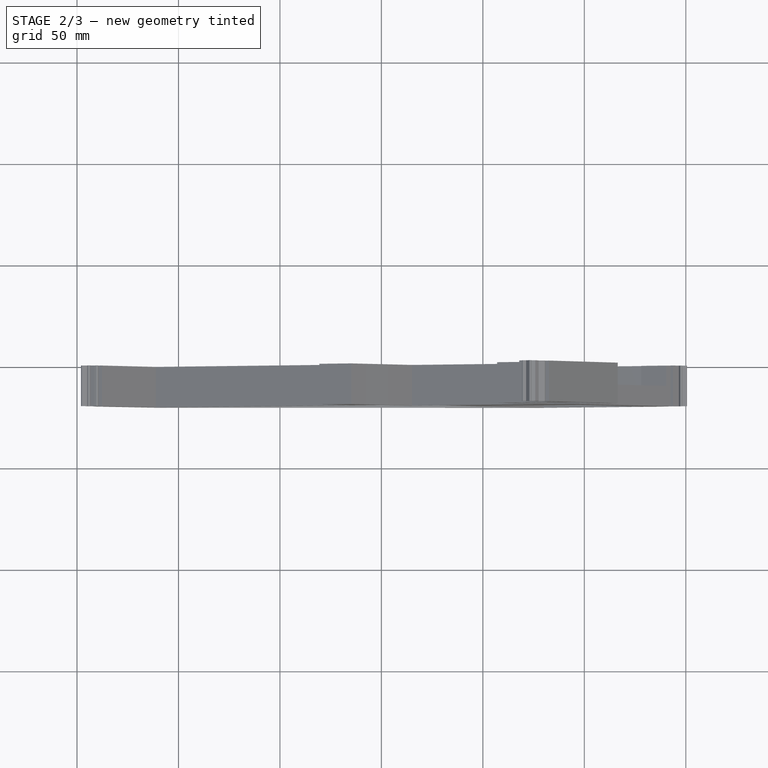
[diagram: stage 2 of 3 — top view after this stage's code; geometry added in this stage tinted green]
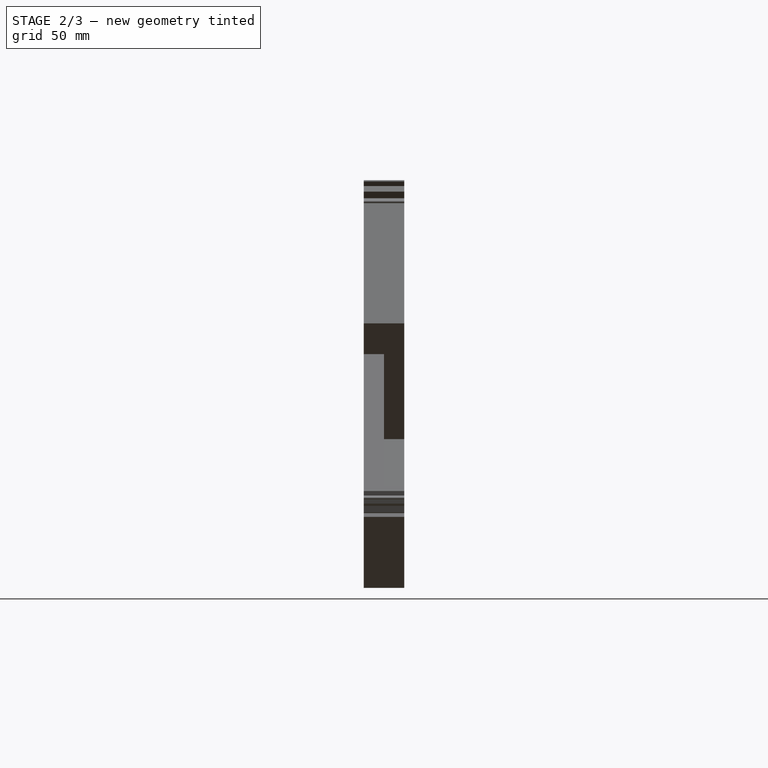
[diagram: stage 2 of 3 — right view after this stage's code; geometry added in this stage tinted green]
FEATURE [PartDesign::Pocket] Pocket001
  BaseFeature = -> Pocket004
  Direction = (0,1,2e-16)
  Length = 16.4
  Length2 = 5
  Placement = pos=(0,0,0) rot=(1,0,0;1.5708rad)
  Profile = -> Sketch002
  ReferenceAxis = -> Sketch002 [N_Axis]
  Reversed = true
  Type = 0
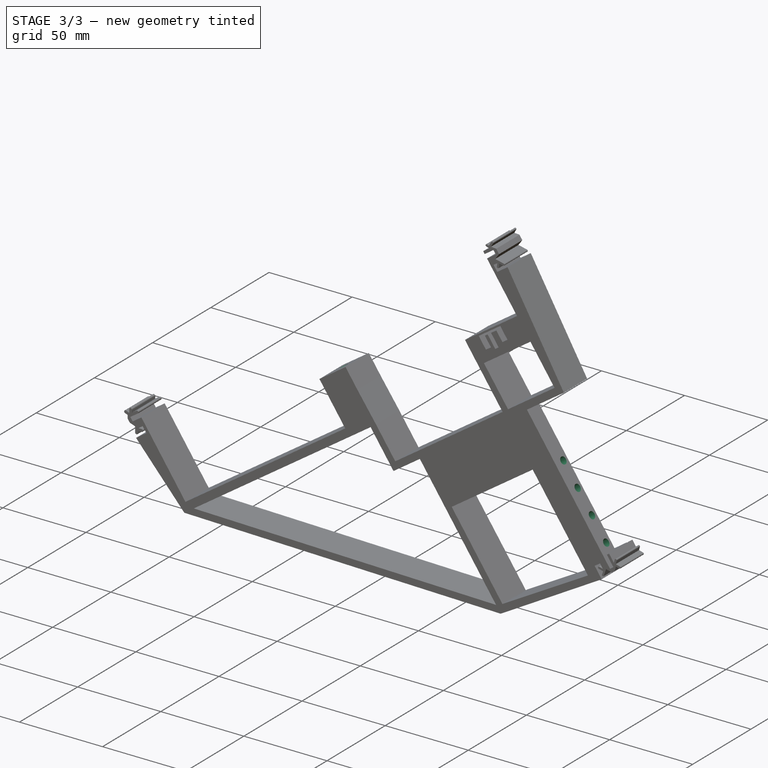
[diagram: stage 3 of 3 — iso view after this stage's code; geometry added in this stage tinted green]
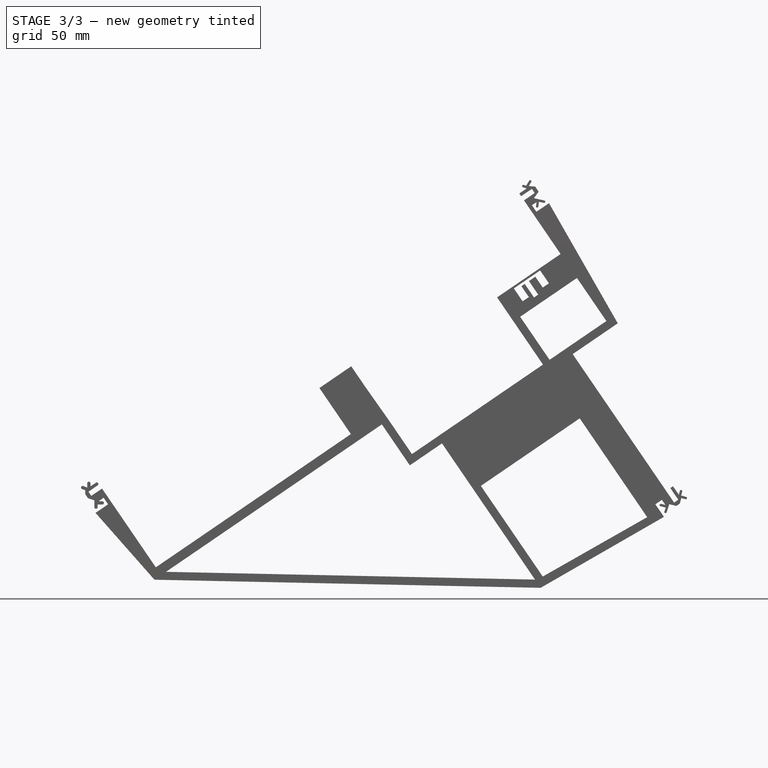
[diagram: stage 3 of 3 — front view after this stage's code; geometry added in this stage tinted green]
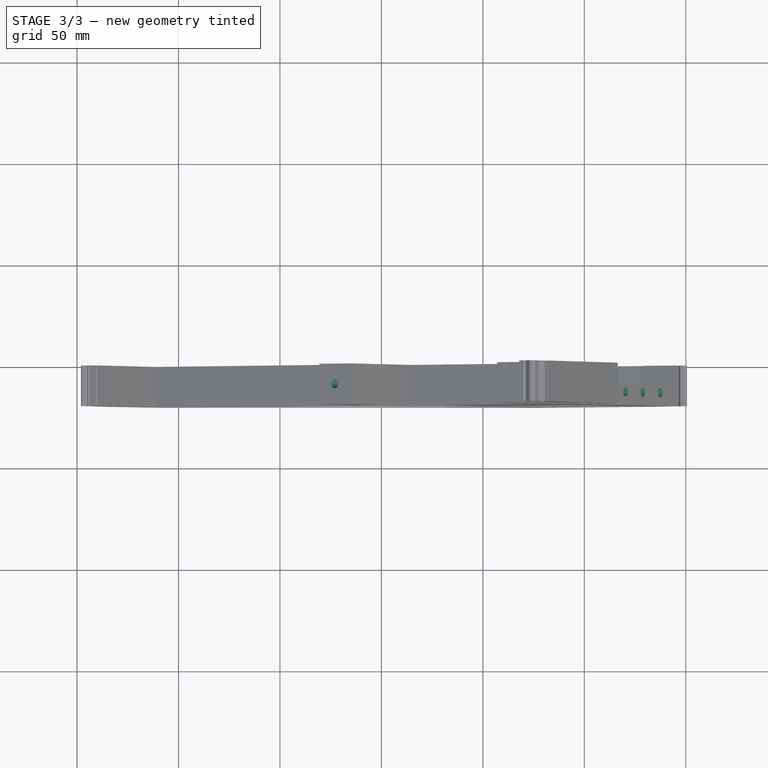
[diagram: stage 3 of 3 — top view after this stage's code; geometry added in this stage tinted green]
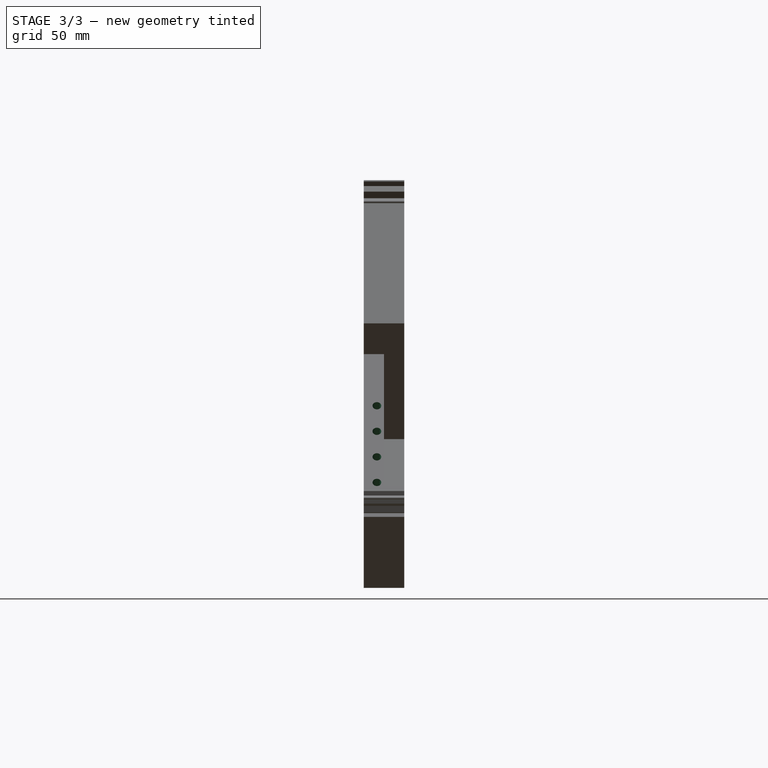
[diagram: stage 3 of 3 — right view after this stage's code; geometry added in this stage tinted green]
FEATURE [PartDesign::Plane] DatumPlane003
  Length = 392.923
  MapMode = 5
  Placement = pos=(217.799,-3.3e-14,148.748) rot=(0.466916,0,0.884302;3.14159rad)
  ResizeMode = 0
  Support = -> [Pocket001]
  Width = 77.0508
FEATURE [Sketcher::SketchObject] Sketch004
  FullyConstrained = true
  MapMode = 5
  Placement = pos=(217.799,-3.3e-14,148.748) rot=(0.466916,0,0.884302;3.14159rad)
  Support = -> [DatumPlane003]
  sketch-geometry (7):
    g0: LineSegment StartX=-123.5 StartY=13.5 StartZ=0 EndX=-93 EndY=13.5 EndZ=0
    g1: Circle CenterX=-123.5 CenterY=13.5 CenterZ=0 NormalX=0 NormalY=0 NormalZ=1 AngleXU=0 Radius=2.15
    g2: Circle CenterX=-93 CenterY=13.5 CenterZ=0 NormalX=0 NormalY=0 NormalZ=1 AngleXU=0 Radius=2.15
    g3: LineSegment StartX=-131 StartY=13.5 StartZ=0 EndX=-123.5 EndY=13.5 EndZ=0
    g4: Circle CenterX=-108.25 CenterY=13.5 CenterZ=0 NormalX=0 NormalY=0 NormalZ=1 AngleXU=0 Radius=2.15
    g5: Circle CenterX=-77.75 CenterY=13.5 CenterZ=0 NormalX=0 NormalY=0 NormalZ=1 AngleXU=0 Radius=2.15
    g6: LineSegment StartX=-108.25 StartY=13.5 StartZ=0 EndX=-77.75 EndY=13.5 EndZ=0
  constraints (18):
    c: Horizontal(g0)
    c: DistanceY(g0) = 13.5
    c: Coincident(g1,g0)
    c: Coincident(g2,g0)
    c: Equal(g2,g1)
    c: Diameter(g1) = 4.3
    c: Distance(g0) = 30.5
    c: Coincident(g3,g1)
    c: Horizontal(g3)
    c: DistanceX(g3) = -131
    c: DistanceX(g3,g3) = 7.5
    c: Coincident(g6,g4)
    c: Coincident(g6,g5)
    c: Horizontal(g6)
    c: Equal(g6,g0)
    c: Equal(g4,g5)
    c: Equal(g5,g2)
    c: Symmetric(g1,g2,g4)
FEATURE [PartDesign::Pocket] Pocket003
  BaseFeature = -> Pocket001
  Direction = (-0.825789,1e-16,-0.56398)
  Length = 15
  Length2 = 5
  Placement = pos=(0,0,0) rot=(1,0,0;1.5708rad)
  Profile = -> Sketch004
  ReferenceAxis = -> Sketch004 [N_Axis]
  Type = 0
FEATURE [PartDesign::Plane] DatumPlane
  Length = 421.378
  MapMode = 5
  Placement = pos=(-5.45185,-1.8e-15,7.98269) rot=(-0.295137,0,0.955455;3.14159rad)
  ResizeMode = 0
  Support = -> [Pad]
  Width = 78.0475
FEATURE [Sketcher::SketchObject] Sketch007
  FullyConstrained = true
  MapMode = 5
  Placement = pos=(-5.45185,-1.8e-15,7.98269) rot=(-0.295137,0,0.955455;3.14159rad)
  Support = -> [DatumPlane]
  sketch-geometry (5):
    g0: LineSegment StartX=-170 StartY=0 StartZ=0 EndX=-151 EndY=0 EndZ=0
    g1: LineSegment StartX=-151 StartY=0 StartZ=0 EndX=-151 EndY=20 EndZ=0
    g2: LineSegment StartX=-151 StartY=20 StartZ=0 EndX=-170 EndY=20 EndZ=0
    g3: LineSegment StartX=-170 StartY=20 StartZ=0 EndX=-170 EndY=0 EndZ=0
    g4: Circle CenterX=-160.5 CenterY=10 CenterZ=0 NormalX=0 NormalY=0 NormalZ=1 AngleXU=0 Radius=2.15
  constraints (14):
    c: Coincident(g0,g1)
    c: Coincident(g1,g2)
    c: Coincident(g2,g3)
    c: Coincident(g3,g0)
    c: Horizontal(g0)
    c: Horizontal(g2)
    c: Vertical(g1)
    c: Vertical(g3)
    c: DistanceX(g0) = -170
    c: DistanceY(g0) = 0
    c: DistanceX(g1) = -151
    c: DistanceY(g1) = 20
    c: Diameter(g4) = 4.3
    c: Symmetric(g2,g0,g4)
FEATURE [PartDesign::Pocket] Pocket
  BaseFeature = -> Pocket003
  Direction = (0.56398,2e-16,-0.825789)
  Length = 37
  Length2 = 5
  Placement = pos=(0,0,0) rot=(1,0,0;1.5708rad)
  Profile = -> Sketch007
  ReferenceAxis = -> Sketch007 [N_Axis]
  Type = 0
FEATURE [PartDesign::Body] Body
  Group = -> [Sketch,Pad,DatumPlane,Pocket004,Sketch002,Pocket001,Sketch004,Pocket003,Pocket,DatumPlane002,Sketch006,DatumPlane003,Sketch007]
  Origin = -> Origin
  Tip = -> Pocket
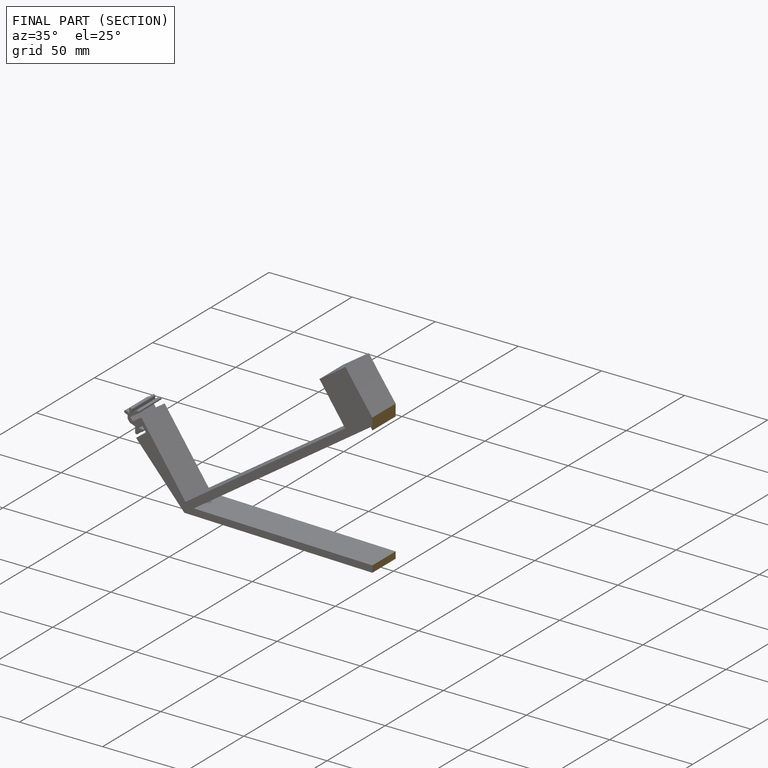
[diagram: finished part — half-section view (interior)]
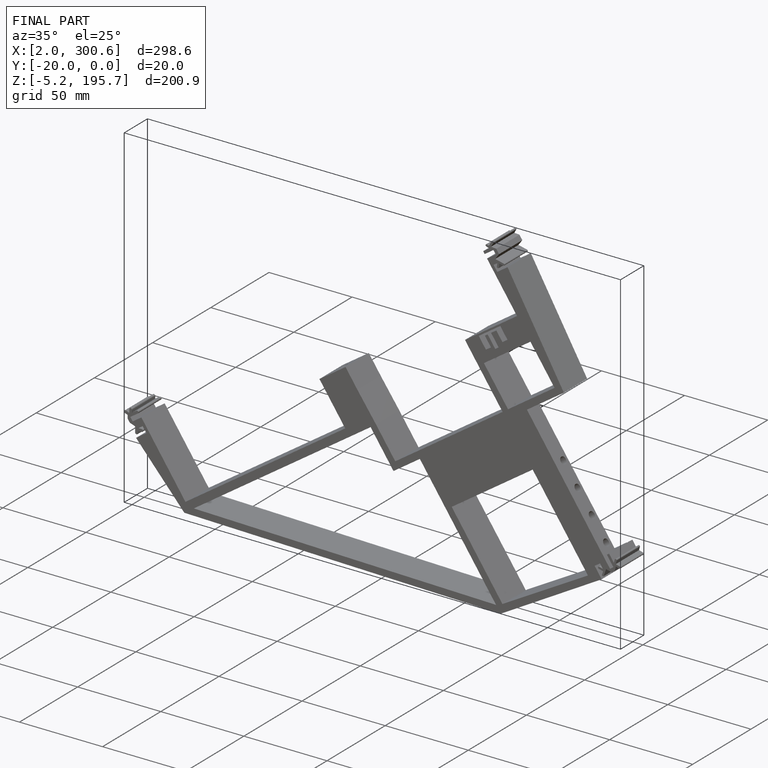
[diagram: finished part — iso view with bounding-box wireframe]
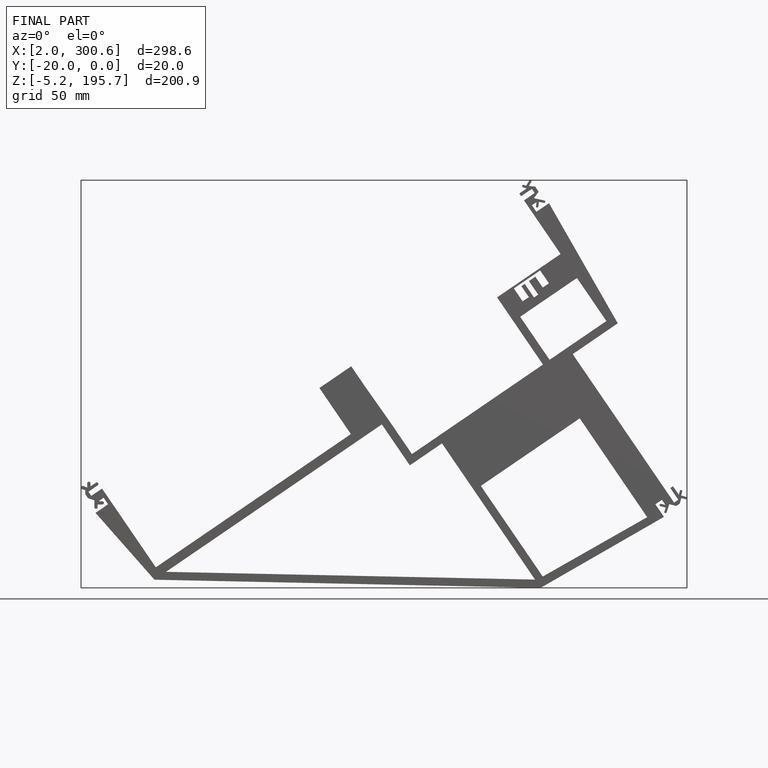
[diagram: finished part — front view with bounding-box wireframe]
